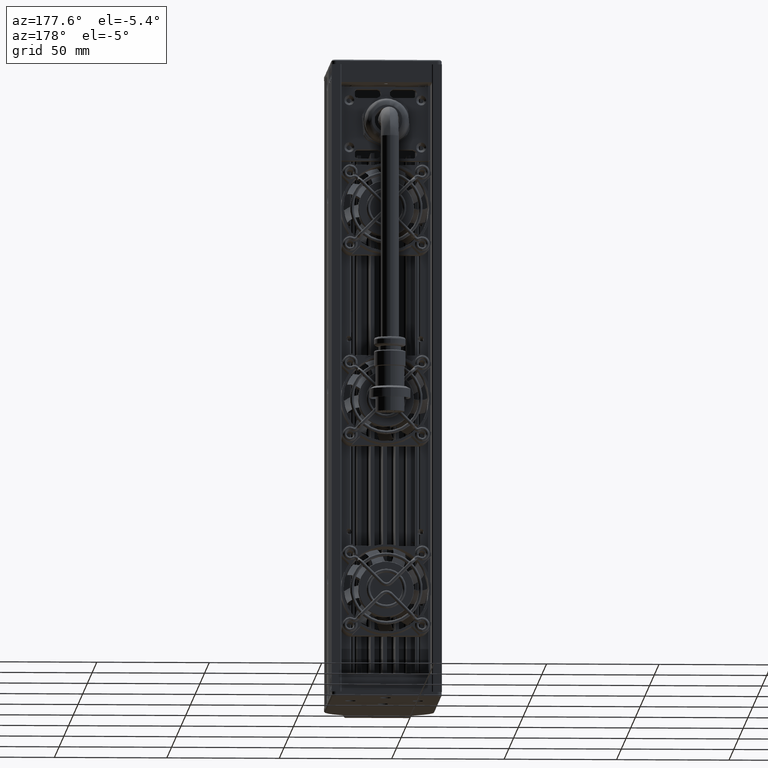
[diagram: clean part render]
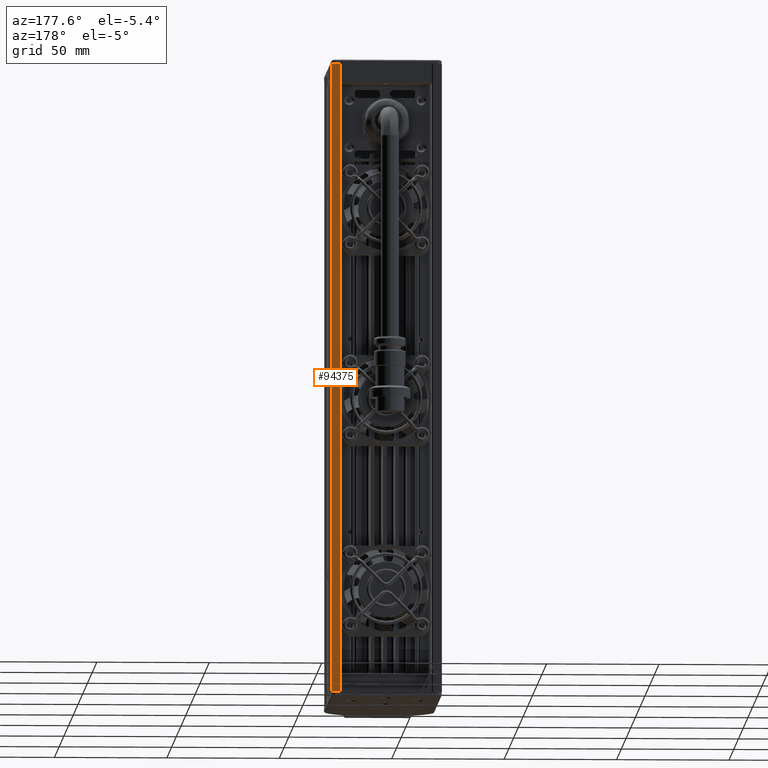
[diagram: same view with one face highlighted and labeled with its STEP entity id]
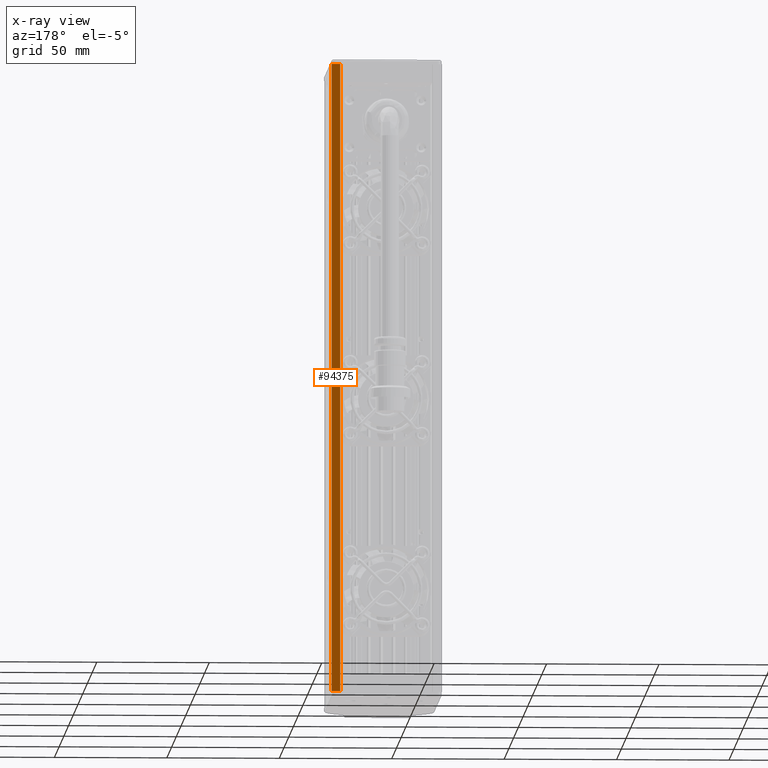
[diagram: x-ray of the same camera — body ghosted, the highlighted face saturated]
A machine part, auxiliary view. The second image highlights one B-rep face of the part: STEP entity #94375.
The next image is the same camera in x-ray: the body ghosted, the highlighted face saturated — about 0% of this face is hidden behind the body in this view.
In plain terms, the highlighted planar face has unit normal (-0, 1, 0).
Its self-contained STEP definition (entity closure, byte-faithful):
#6792 = DIRECTION ( 'NONE',  ( 0.0000000000000000000, 0.0000000000000000000, 1.000000000000000000 ) ) ;
#8790 = LINE ( 'NONE', #56918, #68913 ) ;
#12917 = VERTEX_POINT ( 'NONE', #56365 ) ;
#21061 = EDGE_CURVE ( 'NONE', #69585, #121948, #118722, .T. ) ;
#28525 = ORIENTED_EDGE ( 'NONE', *, *, #78284, .T. ) ;
#28977 = AXIS2_PLACEMENT_3D ( 'NONE', #31131, #120499, #41453 ) ;
#31131 = CARTESIAN_POINT ( 'NONE',  ( -37.56201180637545200, 44.00452420306967800, 140.0000000000000000 ) ) ;
#31389 = VECTOR ( 'NONE', #46582, 1000.000000000000000 ) ;
#37554 = DIRECTION ( 'NONE',  ( -0.0000000000000000000, -0.0000000000000000000, -1.000000000000000000 ) ) ;
#41453 = DIRECTION ( 'NONE',  ( -1.000000000000000000, -1.416100796715760900E-016, 0.0000000000000000000 ) ) ;
#44247 = VECTOR ( 'NONE', #6792, 1000.000000000000000 ) ;
#45780 = DIRECTION ( 'NONE',  ( -1.000000000000000000, -1.416100796715760900E-016, 0.0000000000000000000 ) ) ;
#46042 = EDGE_LOOP ( 'NONE', ( #107648, #74481, #82142, #28525 ) ) ;
#46582 = DIRECTION ( 'NONE',  ( -1.000000000000000000, -0.0000000000000000000, -0.0000000000000000000 ) ) ;
#56101 = LINE ( 'NONE', #85374, #31389 ) ;
#56365 = CARTESIAN_POINT ( 'NONE',  ( -16.91201180637544600, 44.00452420306967800, 140.0000000000000000 ) ) ;
#56918 = CARTESIAN_POINT ( 'NONE',  ( -13.06201180637545200, 44.00452420306967800, 140.0000000000000000 ) ) ;
#68913 = VECTOR ( 'NONE', #37554, 1000.000000000000000 ) ;
#69585 = VERTEX_POINT ( 'NONE', #112848 ) ;
#71715 = FACE_OUTER_BOUND ( 'NONE', #46042, .T. ) ;
#74481 = ORIENTED_EDGE ( 'NONE', *, *, #114359, .T. ) ;
#78284 = EDGE_CURVE ( 'NONE', #121948, #12917, #106115, .T. ) ;
#78347 = CARTESIAN_POINT ( 'NONE',  ( -16.91201180637544600, 44.00452420306967800, -140.0000000000000000 ) ) ;
#82142 = ORIENTED_EDGE ( 'NONE', *, *, #21061, .T. ) ;
#83546 = CARTESIAN_POINT ( 'NONE',  ( -16.91201180637544600, 44.00452420306967800, 140.0000000000000000 ) ) ;
#85374 = CARTESIAN_POINT ( 'NONE',  ( -37.56201180637544500, 44.00452420306967800, 140.0000000000000000 ) ) ;
#94375 = ADVANCED_FACE ( 'NONE', ( #71715 ), #126329, .T. ) ;
#94524 = CARTESIAN_POINT ( 'NONE',  ( -37.56201180637545200, 44.00452420306967800, -140.0000000000000000 ) ) ;
#94985 = VERTEX_POINT ( 'NONE', #97490 ) ;
#97490 = CARTESIAN_POINT ( 'NONE',  ( -13.06201180637544100, 44.00452420306967800, 140.0000000000000000 ) ) ;
#106115 = LINE ( 'NONE', #83546, #44247 ) ;
#107648 = ORIENTED_EDGE ( 'NONE', *, *, #119395, .F. ) ;
#112848 = CARTESIAN_POINT ( 'NONE',  ( -13.06201180637545200, 44.00452420306967800, -140.0000000000000000 ) ) ;
#114359 = EDGE_CURVE ( 'NONE', #94985, #69585, #8790, .T. ) ;
#118722 = LINE ( 'NONE', #94524, #120368 ) ;
#119395 = EDGE_CURVE ( 'NONE', #94985, #12917, #56101, .T. ) ;
#120368 = VECTOR ( 'NONE', #45780, 1000.000000000000000 ) ;
#120499 = DIRECTION ( 'NONE',  ( -1.416100796715760900E-016, 1.000000000000000000, 0.0000000000000000000 ) ) ;
#121948 = VERTEX_POINT ( 'NONE', #78347 ) ;
#126329 = PLANE ( 'NONE',  #28977 ) ;